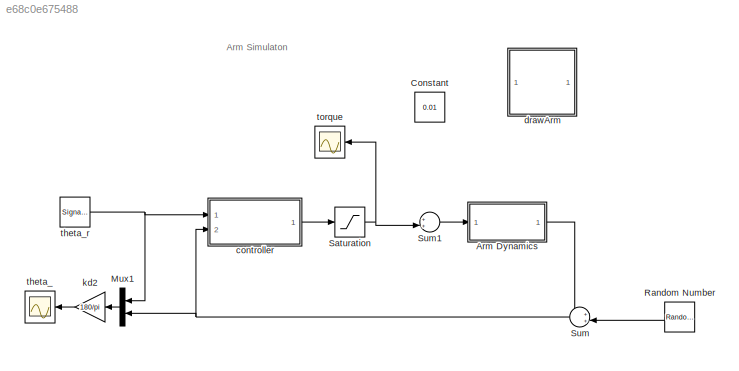
MODEL slx_e68c0e675488
KIND model
CONFIG AbsTol = auto
CONFIG EnableMultiTasking = on
CONFIG FixedStep = auto
CONFIG InitFcn = addpath ./..\narm_param\narmParamHW13
CONFIG MaxStep = auto
CONFIG MinStep = auto
CONFIG RelTol = 1e-3
CONFIG SampleTimeConstraint = Unconstrained
CONFIG Solver = ode45
CONFIG SolverName = ode45
CONFIG StartTime = 0.0
CONFIG StopTime = P.t_end
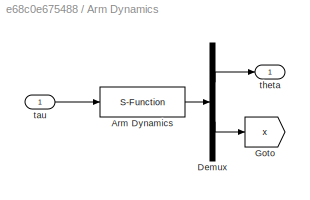
BLOCK [SubSystem] Arm Dynamics 
  Ports = [1, 1]
  RequestExecContextInheritance = off
  Variant = off
BLOCK [S-Function] Arm Dynamics /Arm Dynamics
  EnableBusSupport = off
  FunctionName = arm_dynamics
  Parameters = P
  Ports = [1, 1]
  SFcnIsStateOwnerBlock = off
  SFunctionDeploymentMode = off
BLOCK [Demux] Arm Dynamics /Demux
  DisplayOption = bar
  Outputs = [1;2]
  Ports = [1, 2]
BLOCK [Goto] Arm Dynamics /Goto
  GotoTag = x
  TagVisibility = global
BLOCK [Inport] Arm Dynamics /tau
  IconDisplay = Port number
BLOCK [Outport] Arm Dynamics /theta 
  IconDisplay = Port number
BLOCK [Constant] Constant
  Value = 0.01
BLOCK [Mux] Mux1
  DisplayOption = bar
  Inputs = 2
  Ports = [2, 1]
BLOCK [RandomNumber] Random Number
  SampleTime = 0.1
  Variance = .01^2
BLOCK [Saturate] Saturation
  InputPortMap = u0
  LowerLimit = -P.tau_max
  Ports = [1, 1]
  UpperLimit = P.tau_max
BLOCK [Sum] Sum
  IconShape = round
  InputSameDT = off
  Inputs = ++|
  OutDataTypeStr = Inherit: Inherit via internal rule
  Ports = [2, 1]
  SaturateOnIntegerOverflow = off
BLOCK [Sum] Sum1
  IconShape = round
  InputSameDT = off
  Inputs = ++|
  OutDataTypeStr = Inherit: Inherit via internal rule
  Ports = [2, 1]
  SaturateOnIntegerOverflow = off
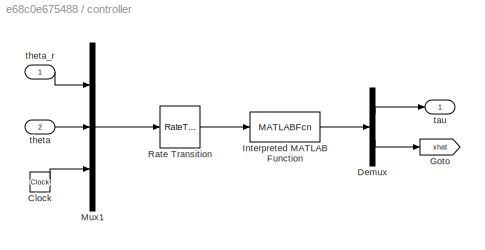
BLOCK [SubSystem] controller
  Ports = [2, 1]
  RequestExecContextInheritance = off
  Variant = off
BLOCK [Clock] controller/Clock
BLOCK [Demux] controller/Demux
  DisplayOption = bar
  Outputs = [1;2]
  Ports = [1, 2]
BLOCK [Goto] controller/Goto
  GotoTag = xhat
  TagVisibility = global
BLOCK [MATLABFcn] controller/Interpreted MATLAB Function
  MATLABFcn = arm_ctrl(u,P)
  OutputDimensions = 1+2
  Ports = [1, 1]
BLOCK [Mux] controller/Mux1
  DisplayOption = bar
  Inputs = 3
  Ports = [3, 1]
BLOCK [RateTransition] controller/Rate Transition
  OutPortSampleTime = P.Ts
BLOCK [Outport] controller/tau
  IconDisplay = Port number
BLOCK [Inport] controller/theta
  IconDisplay = Port number
  Port = 2
BLOCK [Inport] controller/theta_r
  IconDisplay = Port number
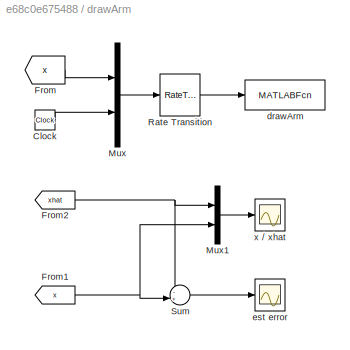
BLOCK [SubSystem] drawArm
  Ports = []
  RequestExecContextInheritance = off
  Variant = off
BLOCK [Clock] drawArm/Clock
BLOCK [From] drawArm/From
  GotoTag = x
  TagVisibility = global
BLOCK [From] drawArm/From1
  GotoTag = x
  TagVisibility = global
BLOCK [From] drawArm/From2
  GotoTag = xhat
  TagVisibility = global
BLOCK [Mux] drawArm/Mux
  DisplayOption = bar
  Inputs = 2
  Ports = [2, 1]
BLOCK [Mux] drawArm/Mux1
  DisplayOption = bar
  Inputs = 2
  Ports = [2, 1]
BLOCK [RateTransition] drawArm/Rate Transition
  OutPortSampleTime = P.t_plot
BLOCK [Sum] drawArm/Sum
  IconShape = round
  InputSameDT = off
  Inputs = -+|
  OutDataTypeStr = Inherit: Inherit via internal rule
  Ports = [2, 1]
  SaturateOnIntegerOverflow = off
BLOCK [MATLABFcn] drawArm/drawArm
  MATLABFcn = drawArm(u, P)
  OutputDimensions = 0
  Ports = [1]
BLOCK [Scope] drawArm/est error
  NumInputPorts = 1
  Ports = [1]
  ScopeSpecificationString = Simulink.scopes.TimeScopeBlockCfg('CurrentConfiguration', extmgr.ConfigurationSet(extmgr.Configuration('Core','General UI',true),extmgr.Configuration('Core','Source UI',true),extmgr.Configuration('Sources','WiredSimulink',true,'DataLoggingVariableName','ScopeData1','DataLoggingSaveFormat','StructureWithTime','DataLoggingLimitDataPoints',true,'DataLoggingDecimation','1','DataLoggingDecimateData',tr...<+1803ch>
BLOCK [Scope] drawArm/x // xhat
  NumInputPorts = 1
  Ports = [1]
  ScopeSpecificationString = Simulink.scopes.TimeScopeBlockCfg('CurrentConfiguration', extmgr.ConfigurationSet(extmgr.Configuration('Core','General UI',true),extmgr.Configuration('Core','Source UI',true),extmgr.Configuration('Sources','WiredSimulink',true,'DataLoggingVariableName','ScopeData2','DataLoggingSaveFormat','StructureWithTime','DataLoggingLimitDataPoints',true,'DataLoggingDecimation','1','DataLoggingDecimateData',tr...<+1835ch>
BLOCK [Gain] kd2
  Gain = 180/pi
  OutDataTypeStr = Inherit: Inherit via internal rule
  ParamDataTypeStr = Inherit: Inherit via internal rule
  SaturateOnIntegerOverflow = off
BLOCK [Scope] theta_
  NumInputPorts = 1
  Ports = [1]
  ScopeSpecificationString = Simulink.scopes.TimeScopeBlockCfg('CurrentConfiguration', extmgr.ConfigurationSet(extmgr.Configuration('Core','General UI',true),extmgr.Configuration('Core','Source UI',true),extmgr.Configuration('Sources','WiredSimulink',true,'DataLoggingVariableName','ScopeData1','DataLoggingSaveFormat','StructureWithTime','DataLoggingLimitDataPoints',true,'DataLoggingDecimation','1','DataLoggingDecimateData',tr...<+1736ch>
BLOCK [SignalGenerator] theta_r
  Amplitude = 25*pi/180
  Frequency = .05
  Ports = [0, 1]
  WaveForm = square
BLOCK [Scope] torque
  NumInputPorts = 1
  Ports = [1]
  ScopeSpecificationString = Simulink.scopes.TimeScopeBlockCfg('CurrentConfiguration', extmgr.ConfigurationSet(extmgr.Configuration('Core','General UI',true),extmgr.Configuration('Core','Source UI',true),extmgr.Configuration('Sources','WiredSimulink',true,'DataLoggingSaveFormat','StructureWithTime','DataLoggingLimitDataPoints',true,'DataLoggingDecimation','1','DataLoggingDecimateData',true,'DataLoggingVariableName','ScopeData...<+1686ch>
ANNOTATION (root): Arm Simulaton
LINE Arm Dynamics /Arm Dynamics:1 -> Arm Dynamics /Demux:1
LINE Arm Dynamics /Demux:1 -> Arm Dynamics /theta :1
LINE Arm Dynamics /Demux:2 -> Arm Dynamics /Goto:1
LINE Arm Dynamics /tau:1 -> Arm Dynamics /Arm Dynamics:1
LINE Arm Dynamics :1 -> Sum:1
LINE Mux1:1 -> kd2:1
LINE Random Number:1 -> Sum:2
NET Saturation:1 -> Sum1:2, torque:1
LINE Sum1:1 -> Arm Dynamics :1
NET Sum:1 -> Mux1:2, controller:2
LINE controller/Clock:1 -> controller/Mux1:3
LINE controller/Demux:1 -> controller/tau:1
LINE controller/Demux:2 -> controller/Goto:1
LINE controller/Interpreted MATLAB Function:1 -> controller/Demux:1
LINE controller/Mux1:1 -> controller/Rate Transition:1
LINE controller/Rate Transition:1 -> controller/Interpreted MATLAB Function:1
LINE controller/theta:1 -> controller/Mux1:2
LINE controller/theta_r:1 -> controller/Mux1:1
LINE controller:1 -> Saturation:1
LINE drawArm/Clock:1 -> drawArm/Mux:2
NET drawArm/From1:1 -> drawArm/Mux1:2, drawArm/Sum:2
NET drawArm/From2:1 -> drawArm/Mux1:1, drawArm/Sum:1
LINE drawArm/From:1 -> drawArm/Mux:1
LINE drawArm/Mux1:1 -> drawArm/x // xhat:1
LINE drawArm/Mux:1 -> drawArm/Rate Transition:1
LINE drawArm/Rate Transition:1 -> drawArm/drawArm:1
LINE drawArm/Sum:1 -> drawArm/est error:1
LINE kd2:1 -> theta_:1
NET theta_r:1 -> Mux1:1, controller:1
note: NET lines group one-source signal fan-out (src -> all destinations, sorted); 1:1 wires keep LINE
